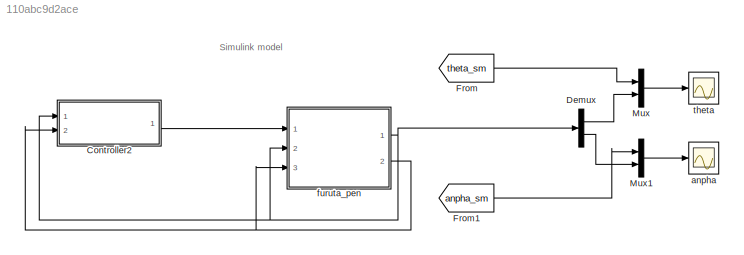
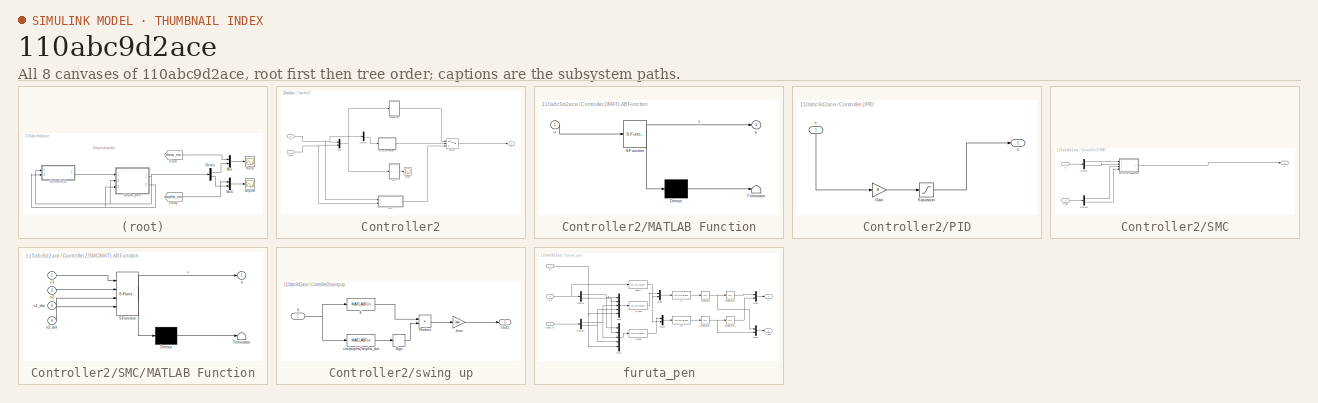
[diagram: thumbnail index - all 8 canvases of the model, root first then tree order]
MODEL slx_110abc9d2ace
KIND model
CONFIG AbsTol = auto
CONFIG EnableMultiTasking = off
CONFIG FixedStep = auto
CONFIG MaxStep = auto
CONFIG MinStep = auto
CONFIG RelTol = 1e-3
CONFIG SampleTimeConstraint = Unconstrained
CONFIG Solver = VariableStepAuto
CONFIG SolverName = VariableStepAuto
CONFIG StartTime = 0.0
CONFIG StopTime = 10.0
BLOCK [SubSystem] Controller2
  Ports = [2, 1]
  RequestExecContextInheritance = off
  Variant = off
BLOCK [Demux] Controller2/Demux
  DisplayOption = bar
  Outputs = 2
  Ports = [1, 2]
BLOCK [SubSystem] Controller2/MATLAB Function
  ErrorFcn = Stateflow.Translate.translate
  PermitHierarchicalResolution = ExplicitOnly
  Ports = [1, 1]
  RequestExecContextInheritance = off
  SFBlockType = MATLAB Function
  TreatAsAtomicUnit = on
  Variant = off
BLOCK [Demux] Controller2/MATLAB Function/ Demux 
  Outputs = 1
  Ports = [1, 1]
BLOCK [S-Function] Controller2/MATLAB Function/ SFunction 
  EnableBusSupport = on
  FunctionName = sf_sfun
  PortCounts = [1 2]
  Ports = [1, 2]
  SFcnIsStateOwnerBlock = off
  SFunctionDeploymentMode = off
  Tag = Stateflow S-Function furuta_pen_sim 1
BLOCK [Terminator] Controller2/MATLAB Function/ Terminator 
BLOCK [Inport] Controller2/MATLAB Function/u
  IconDisplay = Port number
BLOCK [Outport] Controller2/MATLAB Function/y
  IconDisplay = Port number
BLOCK [Mux] Controller2/Mux
  DisplayOption = bar
  Inputs = 2
  Ports = [2, 1]
BLOCK [SubSystem] Controller2/PID
  Ports = [1, 1]
  RequestExecContextInheritance = off
  Variant = off
BLOCK [Gain] Controller2/PID/Gain
  Gain = -R
  Multiplication = Matrix(K*u)
  OutDataTypeStr = Inherit: Inherit via internal rule
  ParamDataTypeStr = Inherit: Inherit via internal rule
  SaturateOnIntegerOverflow = off
BLOCK [Saturate] Controller2/PID/Saturation
  InputPortMap = u0
  LowerLimit = -up
  Ports = [1, 1]
  UpperLimit = up
BLOCK [Outport] Controller2/PID/u
  IconDisplay = Port number
BLOCK [Inport] Controller2/PID/x
  IconDisplay = Port number
BLOCK [SubSystem] Controller2/SMC
  Ports = [2, 1]
  RequestExecContextInheritance = off
  Variant = off
BLOCK [Demux] Controller2/SMC/Demux
  DisplayOption = bar
  Outputs = 2
  Ports = [1, 2]
BLOCK [Demux] Controller2/SMC/Demux1
  DisplayOption = bar
  Outputs = 2
  Ports = [1, 2]
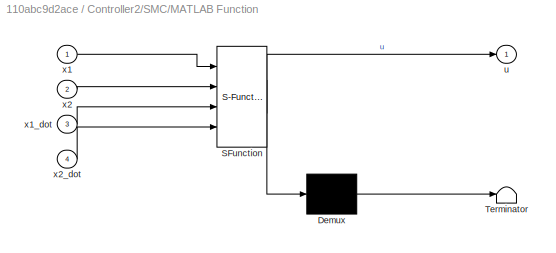
BLOCK [SubSystem] Controller2/SMC/MATLAB Function
  ErrorFcn = Stateflow.Translate.translate
  PermitHierarchicalResolution = ExplicitOnly
  Ports = [4, 1]
  RequestExecContextInheritance = off
  SFBlockType = MATLAB Function
  TreatAsAtomicUnit = on
  Variant = off
BLOCK [Demux] Controller2/SMC/MATLAB Function/ Demux 
  Outputs = 1
  Ports = [1, 1]
BLOCK [S-Function] Controller2/SMC/MATLAB Function/ SFunction 
  EnableBusSupport = on
  FunctionName = sf_sfun
  PortCounts = [4 2]
  Ports = [4, 2]
  SFcnIsStateOwnerBlock = off
  SFunctionDeploymentMode = off
  Tag = Stateflow S-Function furuta_pen_sim 3
BLOCK [Terminator] Controller2/SMC/MATLAB Function/ Terminator 
BLOCK [Outport] Controller2/SMC/MATLAB Function/u
  IconDisplay = Port number
BLOCK [Inport] Controller2/SMC/MATLAB Function/x1
  IconDisplay = Port number
BLOCK [Inport] Controller2/SMC/MATLAB Function/x1_dot
  IconDisplay = Port number
  Port = 3
BLOCK [Inport] Controller2/SMC/MATLAB Function/x2
  IconDisplay = Port number
  Port = 2
BLOCK [Inport] Controller2/SMC/MATLAB Function/x2_dot
  IconDisplay = Port number
  Port = 4
BLOCK [Outport] Controller2/SMC/u
  IconDisplay = Port number
BLOCK [Inport] Controller2/SMC/x
  IconDisplay = Port number
BLOCK [Inport] Controller2/SMC/x_dot
  IconDisplay = Port number
  Port = 2
BLOCK [Scope] Controller2/Scope
  NumInputPorts = 1
  Ports = [1]
  ScopeSpecificationString = Simulink.scopes.TimeScopeBlockCfg('CurrentConfiguration', extmgr.ConfigurationSet(extmgr.Configuration('Core','General UI',true),extmgr.Configuration('Core','Source UI',true),extmgr.Configuration('Sources','WiredSimulink',true,'DataLoggingVariableName','ScopeData1'),extmgr.Configuration('Visuals','Time Domain',true),extmgr.Configuration('Tools','Plot Navigation',true),extmgr.Configuration('Tools',...<+40ch>
BLOCK [Switch] Controller2/Switch
  Criteria = u2 > Threshold
  InputSameDT = off
  SaturateOnIntegerOverflow = off
BLOCK [SubSystem] Controller2/swing up
  Ports = [1, 1]
  RequestExecContextInheritance = off
  Variant = off
BLOCK [Gain] Controller2/swing up/-ksw
  Gain = -ksw
  OutDataTypeStr = Inherit: Inherit via internal rule
  ParamDataTypeStr = Inherit: Inherit via internal rule
  SaturateOnIntegerOverflow = off
BLOCK [MATLABFcn] Controller2/swing up/E
  MATLABFcn = 1/2*(J1+m1*L1^2)*u(4)^2+m1*g*L1*(cos(u(2))-1)
  Ports = [1, 1]
BLOCK [Outport] Controller2/swing up/Out1
  IconDisplay = Port number
BLOCK [Product] Controller2/swing up/Product
  InputSameDT = off
  OutDataTypeStr = Inherit: Inherit via internal rule
  Ports = [2, 1]
  RndMeth = Floor
  SaturateOnIntegerOverflow = off
BLOCK [Signum] Controller2/swing up/Sign
BLOCK [MATLABFcn] Controller2/swing up/cos(anpha)*anpha_dot
  MATLABFcn = cos(u(2))*u(4)
  Ports = [1, 1]
BLOCK [Inport] Controller2/swing up/q
  IconDisplay = Port number
BLOCK [Outport] Controller2/u
  IconDisplay = Port number
BLOCK [Inport] Controller2/x
  IconDisplay = Port number
BLOCK [Inport] Controller2/x_dot
  IconDisplay = Port number
  Port = 2
BLOCK [Demux] Demux
  DisplayOption = bar
  Outputs = 2
  Ports = [1, 2]
BLOCK [From] From
  GotoTag = theta_sm
BLOCK [From] From1
  GotoTag = anpha_sm
BLOCK [Mux] Mux
  DisplayOption = bar
  Inputs = 2
  Ports = [2, 1]
BLOCK [Mux] Mux1
  DisplayOption = bar
  Inputs = 2
  Ports = [2, 1]
BLOCK [Scope] anpha
  NumInputPorts = 1
  Ports = [1]
  ScopeSpecificationString = Simulink.scopes.TimeScopeBlockCfg('CurrentConfiguration', extmgr.ConfigurationSet(extmgr.Configuration('Core','General UI',true),extmgr.Configuration('Core','Source UI',true),extmgr.Configuration('Sources','WiredSimulink',true,'DataLoggingVariableName','ScopeData1'),extmgr.Configuration('Visuals','Time Domain',true,'SerializedDisplays',{struct('MinYLimReal','-0.30589','MaxYLimReal','0.44831','YLab...<+1491ch>
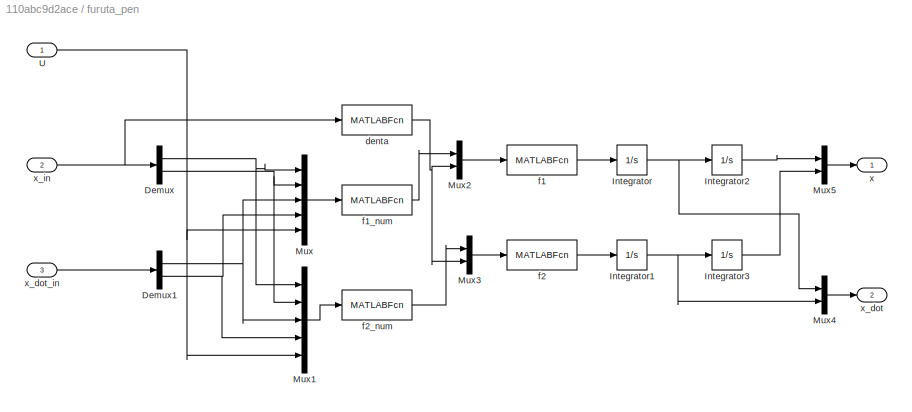
BLOCK [SubSystem] furuta_pen
  Ports = [3, 2]
  RequestExecContextInheritance = off
  Variant = off
BLOCK [Demux] furuta_pen/Demux
  DisplayOption = bar
  Outputs = 2
  Ports = [1, 2]
BLOCK [Demux] furuta_pen/Demux1
  DisplayOption = bar
  Outputs = 2
  Ports = [1, 2]
BLOCK [Integrator] furuta_pen/Integrator
  Ports = [1, 1]
BLOCK [Integrator] furuta_pen/Integrator1
  Ports = [1, 1]
BLOCK [Integrator] furuta_pen/Integrator2
  InitialCondition = theta_0*pi/180
  Ports = [1, 1]
BLOCK [Integrator] furuta_pen/Integrator3
  InitialCondition = anpha_0/180*pi
  Ports = [1, 1]
BLOCK [Mux] furuta_pen/Mux
  DisplayOption = bar
  Inputs = 5
  Ports = [5, 1]
BLOCK [Mux] furuta_pen/Mux1
  DisplayOption = bar
  Inputs = 5
  Ports = [5, 1]
BLOCK [Mux] furuta_pen/Mux2
  DisplayOption = bar
  Inputs = 2
  Ports = [2, 1]
BLOCK [Mux] furuta_pen/Mux3
  DisplayOption = bar
  Inputs = 2
  Ports = [2, 1]
BLOCK [Mux] furuta_pen/Mux4
  DisplayOption = bar
  Inputs = 2
  Ports = [2, 1]
BLOCK [Mux] furuta_pen/Mux5
  DisplayOption = bar
  Inputs = 2
  Ports = [2, 1]
BLOCK [Inport] furuta_pen/U
  IconDisplay = Port number
BLOCK [MATLABFcn] furuta_pen/denta
  MATLABFcn = J0*J1+m1^2*L1^4*sin(u(2))^2+m1^2*L0^2*L1^2+J0*m1*L1^2+J1*m1*L0^2+J1*m1*L1^2*sin(u(2))^2-m1^2*L0^2*L1^2*cos(u(2))^2
  Ports = [1, 1]
BLOCK [MATLABFcn] furuta_pen/f1
  MATLABFcn = u(1)/u(2)
  Ports = [1, 1]
BLOCK [MATLABFcn] furuta_pen/f1_num
  MATLABFcn = m1*L0*L1*cos(u(2))*(0.5*m1*L1^2*sin(2*u(2))*u(3)^2+m1*g*L1*sin(u(2))-beta1*u(4))-(m1*L1^2+J1)*(m1*L1^2*sin(2*u(2))*u(3)*u(4)+m1*L0*L1*sin(u(2))*u(4)^2-u(5)+beta0*u(3))
  Ports = [1, 1]
BLOCK [MATLABFcn] furuta_pen/f2
  MATLABFcn = u(1)/u(2)
  Ports = [1, 1]
BLOCK [MATLABFcn] furuta_pen/f2_num
  MATLABFcn = (m1*L0^2+m1*L1^2*sin(u(2))^2+J0)*(0.5*m1*L1^2*sin(2*u(2))*u(3)^2+m1*g*L1*sin(u(2))-beta1*u(4))-m1*L0*L1*cos(u(2))*(m1*L1^2*sin(2*u(2))*u(3)*u(4)+m1*L0*L1*sin(u(2))*u(4)^2-u(5)+beta0*u(3))
  Ports = [1, 1]
BLOCK [Outport] furuta_pen/x
  IconDisplay = Port number
BLOCK [Outport] furuta_pen/x_dot
  IconDisplay = Port number
  Port = 2
BLOCK [Inport] furuta_pen/x_dot_in
  IconDisplay = Port number
  Port = 3
BLOCK [Inport] furuta_pen/x_in
  IconDisplay = Port number
  Port = 2
BLOCK [Scope] theta
  NumInputPorts = 1
  Ports = [1]
  ScopeSpecificationString = Simulink.scopes.TimeScopeBlockCfg('CurrentConfiguration', extmgr.ConfigurationSet(extmgr.Configuration('Core','General UI',true),extmgr.Configuration('Core','Source UI',true),extmgr.Configuration('Sources','WiredSimulink',true),extmgr.Configuration('Visuals','Time Domain',true,'SerializedDisplays',{struct('MinYLimReal','-32.05199','MaxYLimReal','271.17563','YLabelReal','','MinYLimMag','0.00000','M...<+1401ch>
ANNOTATION (root): Simulink model
LINE Controller2/Demux:2 -> Controller2/MATLAB Function:1
LINE Controller2/MATLAB Function:1 -> Controller2/Switch:2
NET Controller2/Mux:1 -> Controller2/PID:1, Controller2/swing up:1
LINE Controller2/PID/Gain:1 -> Controller2/PID/Saturation:1
LINE Controller2/PID/Saturation:1 -> Controller2/PID/u:1
LINE Controller2/PID/x:1 -> Controller2/PID/Gain:1
LINE Controller2/PID:1 -> Controller2/Scope:1
LINE Controller2/SMC/Demux1:1 -> Controller2/SMC/MATLAB Function:3
LINE Controller2/SMC/Demux1:2 -> Controller2/SMC/MATLAB Function:4
LINE Controller2/SMC/Demux:1 -> Controller2/SMC/MATLAB Function:1
LINE Controller2/SMC/Demux:2 -> Controller2/SMC/MATLAB Function:2
LINE Controller2/SMC/MATLAB Function:1 -> Controller2/SMC/u:1
LINE Controller2/SMC/x:1 -> Controller2/SMC/Demux:1
LINE Controller2/SMC/x_dot:1 -> Controller2/SMC/Demux1:1
LINE Controller2/SMC:1 -> Controller2/Switch:3
LINE Controller2/Switch:1 -> Controller2/u:1
LINE Controller2/swing up/-ksw:1 -> Controller2/swing up/Out1:1
LINE Controller2/swing up/E:1 -> Controller2/swing up/Product:1
LINE Controller2/swing up/Product:1 -> Controller2/swing up/-ksw:1
LINE Controller2/swing up/Sign:1 -> Controller2/swing up/Product:2
LINE Controller2/swing up/cos(anpha)*anpha_dot:1 -> Controller2/swing up/Sign:1
NET Controller2/swing up/q:1 -> Controller2/swing up/E:1, Controller2/swing up/cos(anpha)*anpha_dot:1
LINE Controller2/swing up:1 -> Controller2/Switch:1
NET Controller2/x:1 -> Controller2/Demux:1, Controller2/Mux:1, Controller2/SMC:1
NET Controller2/x_dot:1 -> Controller2/Mux:2, Controller2/SMC:2
LINE Controller2:1 -> furuta_pen:1
LINE Demux:1 -> Mux:2
LINE Demux:2 -> Mux1:2
LINE From1:1 -> Mux1:1
LINE From:1 -> Mux:1
LINE Mux1:1 -> anpha:1
LINE Mux:1 -> theta:1
NET furuta_pen/Demux1:1 -> furuta_pen/Mux1:3, furuta_pen/Mux:3
NET furuta_pen/Demux1:2 -> furuta_pen/Mux1:4, furuta_pen/Mux:4
NET furuta_pen/Demux:1 -> furuta_pen/Mux1:1, furuta_pen/Mux:1
NET furuta_pen/Demux:2 -> furuta_pen/Mux1:2, furuta_pen/Mux:2
NET furuta_pen/Integrator1:1 -> furuta_pen/Integrator3:1, furuta_pen/Mux4:2
LINE furuta_pen/Integrator2:1 -> furuta_pen/Mux5:1
LINE furuta_pen/Integrator3:1 -> furuta_pen/Mux5:2
NET furuta_pen/Integrator:1 -> furuta_pen/Integrator2:1, furuta_pen/Mux4:1
LINE furuta_pen/Mux1:1 -> furuta_pen/f2_num:1
LINE furuta_pen/Mux2:1 -> furuta_pen/f1:1
LINE furuta_pen/Mux3:1 -> furuta_pen/f2:1
LINE furuta_pen/Mux4:1 -> furuta_pen/x_dot:1
LINE furuta_pen/Mux5:1 -> furuta_pen/x:1
LINE furuta_pen/Mux:1 -> furuta_pen/f1_num:1
NET furuta_pen/U:1 -> furuta_pen/Mux1:5, furuta_pen/Mux:5
NET furuta_pen/denta:1 -> furuta_pen/Mux2:2, furuta_pen/Mux3:2
LINE furuta_pen/f1:1 -> furuta_pen/Integrator:1
LINE furuta_pen/f1_num:1 -> furuta_pen/Mux2:1
LINE furuta_pen/f2:1 -> furuta_pen/Integrator1:1
LINE furuta_pen/f2_num:1 -> furuta_pen/Mux3:1
LINE furuta_pen/x_dot_in:1 -> furuta_pen/Demux1:1
NET furuta_pen/x_in:1 -> furuta_pen/Demux:1, furuta_pen/denta:1
NET furuta_pen:1 -> Controller2:1, Demux:1, furuta_pen:2
NET furuta_pen:2 -> Controller2:2, furuta_pen:3
note: NET lines group one-source signal fan-out (src -> all destinations, sorted); 1:1 wires keep LINE
CHART Controller2/MATLAB Function states=1 transitions=1
  STATE_LABEL 'eML_blk_kernel()'
  STATE_LABEL 'SCRIPT:\nfunction y = fcn(u)\nif abs(u)<20*pi/180\n    y = 0;\nelse\n    y= 1;\nend'
CHART Controller2/SMC/MATLAB Function states=1 transitions=1
  STATE_LABEL 'eML_blk_kernel()'
  STATE_LABEL "SCRIPT:\nfunction u = fcn(x1,x2,x1_dot,x2_dot)\nb = [14.8452;12.5278];\nC = [0,17.3564;\n    0,67.377];\nD = [-0.1172,-0.2411;\n    -0.0989,-0.09359];\nM = [0.5,0;\n    0,10];\nQ= [5/16,-3/4;\n    -3/4,9/4];\nR = [161/160 -3;\n    -3 9];\nx = [x1;x2];\nx_dot = [x1_dot;x2_dot];\ns = M*x+x_dot;\nu = -(s'*R*s+s'*Q*(M+D)*x_dot+s'*Q*C*x)/(s'*Q*b);\n"
